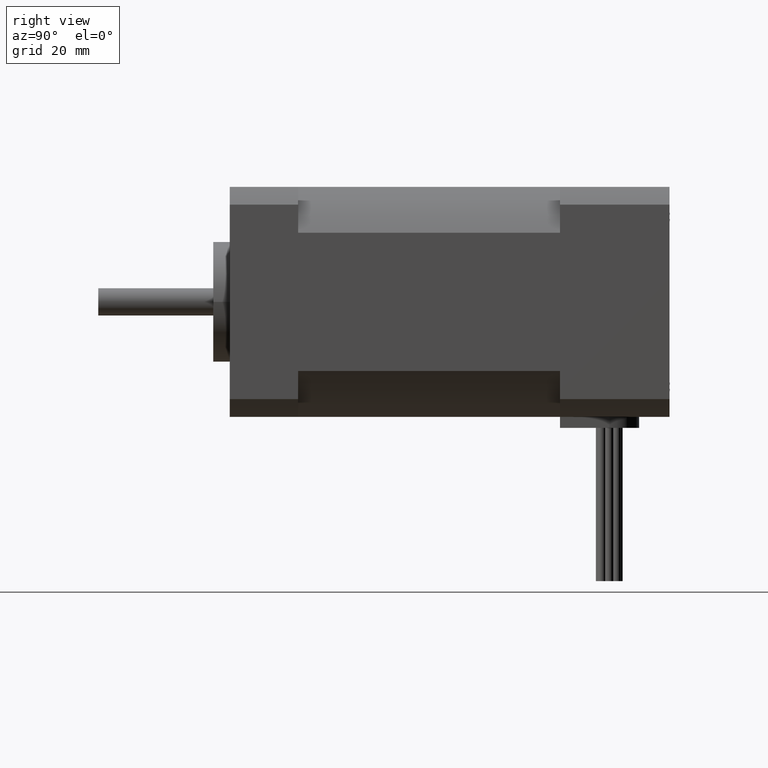
[diagram: clean part render]
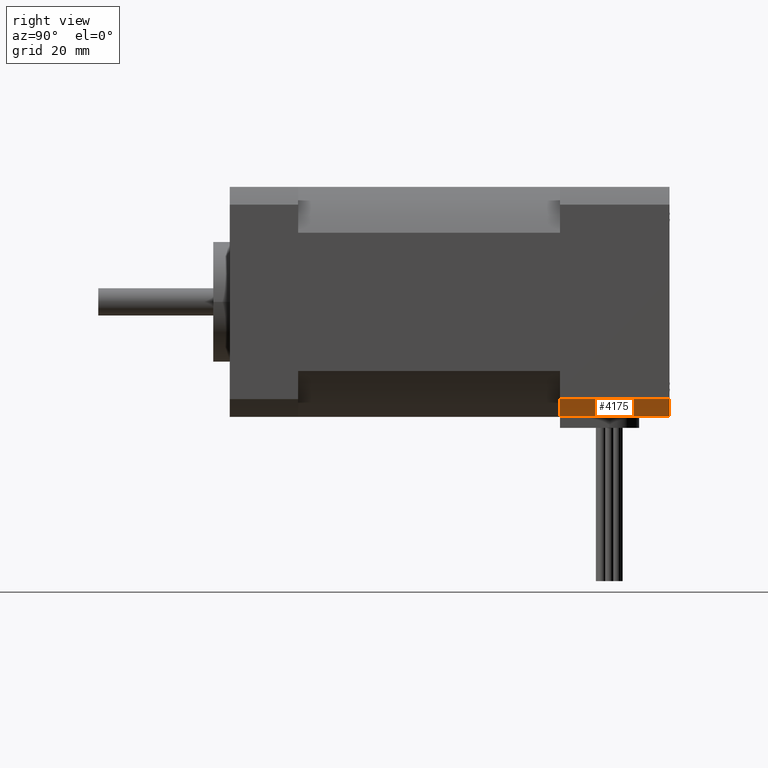
[diagram: same view with one face highlighted and labeled with its STEP entity id]
A machine part, right view. The second image highlights one B-rep face of the part: STEP entity #4175.
In plain terms, the highlighted cylindrical surface (partial cylindrical patch) has radius 27.5 mm, axis along (0, 1, -0).
Its self-contained STEP definition (entity closure, byte-faithful):
#375=LINE('',#6394,#597);
#386=LINE('',#6429,#608);
#597=VECTOR('',#5146,2.);
#608=VECTOR('',#5185,2.);
#909=FACE_OUTER_BOUND('',#1197,.T.);
#1197=EDGE_LOOP('',(#2861,#2862,#2863,#2864));
#1519=CIRCLE('',#4504,2.75);
#1520=CIRCLE('',#4505,2.75);
#1782=VERTEX_POINT('',#6391);
#1783=VERTEX_POINT('',#6393);
#1792=VERTEX_POINT('',#6425);
#1793=VERTEX_POINT('',#6427);
#2203=EDGE_CURVE('',#1783,#1782,#375,.T.);
#2219=EDGE_CURVE('',#1792,#1783,#1519,.T.);
#2220=EDGE_CURVE('',#1793,#1782,#1520,.T.);
#2221=EDGE_CURVE('',#1792,#1793,#386,.T.);
#2861=ORIENTED_EDGE('',*,*,#2219,.T.);
#2862=ORIENTED_EDGE('',*,*,#2203,.T.);
#2863=ORIENTED_EDGE('',*,*,#2220,.F.);
#2864=ORIENTED_EDGE('',*,*,#2221,.F.);
#3818=CYLINDRICAL_SURFACE('',#4503,2.75);
#4175=ADVANCED_FACE('',(#909),#3818,.T.);
#4503=AXIS2_PLACEMENT_3D('',#6424,#5179,#5180);
#4504=AXIS2_PLACEMENT_3D('',#6426,#5181,#5182);
#4505=AXIS2_PLACEMENT_3D('',#6428,#5183,#5184);
#5146=DIRECTION('',(1.45477499778469E-16,1.,-1.24501532695106E-16));
#5179=DIRECTION('center_axis',(1.45477499778469E-16,1.,-1.24501532695106E-16));
#5180=DIRECTION('ref_axis',(0.763636363636364,-1.91475897505393E-16,-0.645646578347808));
#5181=DIRECTION('center_axis',(1.45477499778469E-16,1.,-1.24501532695106E-16));
#5182=DIRECTION('ref_axis',(0.763636363636364,-1.91475897505393E-16,-0.645646578347808));
#5183=DIRECTION('center_axis',(1.45477499778469E-16,1.,-1.24501532695106E-16));
#5184=DIRECTION('ref_axis',(0.763636363636364,-1.91475897505393E-16,-0.645646578347808));
#5185=DIRECTION('',(1.45477499778469E-16,1.,-1.24501532695106E-16));
#6391=CARTESIAN_POINT('',(1.36026813715749,5.69264350961966,-0.652197207720415));
#6393=CARTESIAN_POINT('',(1.36026813715749,3.69264350961966,-0.652197207720415));
#6394=CARTESIAN_POINT('',(1.36026813715749,3.69264350961966,-0.652197207720415));
#6424=CARTESIAN_POINT('Origin',(-0.415259953298977,3.69264350961966,1.44780279227959));
#6425=CARTESIAN_POINT('',(1.68474004670102,3.69264350961966,-0.327725298176885));
#6426=CARTESIAN_POINT('Origin',(-0.415259953298977,3.69264350961966,1.44780279227959));
#6427=CARTESIAN_POINT('',(1.68474004670102,5.69264350961966,-0.327725298176886));
#6428=CARTESIAN_POINT('Origin',(-0.415259953298976,5.69264350961966,1.44780279227959));
#6429=CARTESIAN_POINT('',(1.68474004670102,3.69264350961966,-0.327725298176885));